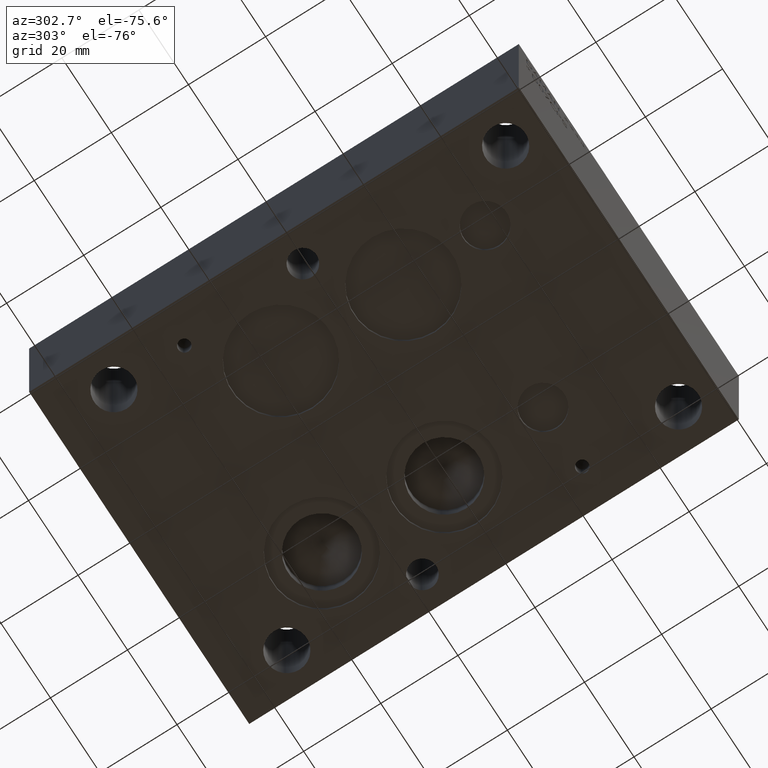
[diagram: clean part render]
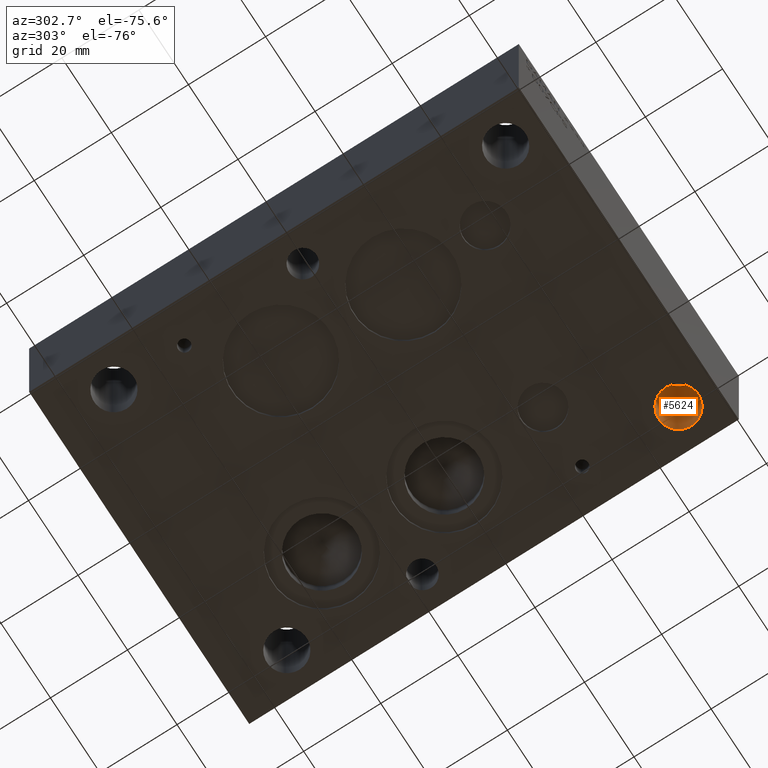
[diagram: same view with one face highlighted and labeled with its STEP entity id]
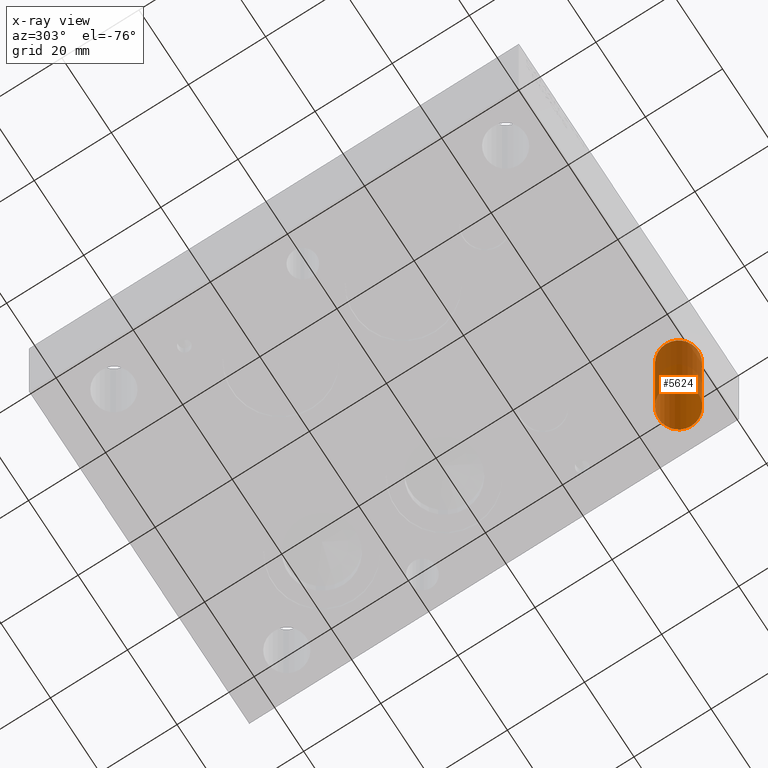
[diagram: x-ray of the same camera — body ghosted, the highlighted face saturated]
A machine part, auxiliary view. The second image highlights one B-rep face of the part: STEP entity #5624.
The next image is the same camera in x-ray: the body ghosted, the highlighted face saturated — about 31% of this face is hidden behind the body in this view.
In plain terms, the highlighted cylindrical surface (bore or boss wall) has radius 5.1562 mm, axis along (0, 0, -1).
Its self-contained STEP definition (entity closure, byte-faithful):
#28=CYLINDRICAL_SURFACE('',#5915,0.203);
#78=CIRCLE('',#5916,0.203);
#79=CIRCLE('',#5917,0.203);
#80=CIRCLE('',#5918,0.203);
#486=FACE_OUTER_BOUND('',#802,.T.);
#802=EDGE_LOOP('',(#5061,#5062,#5063,#5064,#5065));
#1430=LINE('',#9792,#2040);
#2040=VECTOR('',#7062,0.203);
#2718=VERTEX_POINT('',#9789);
#2719=VERTEX_POINT('',#9791);
#2720=VERTEX_POINT('',#9793);
#3513=EDGE_CURVE('',#2718,#2718,#78,.T.);
#3514=EDGE_CURVE('',#2718,#2719,#1430,.T.);
#3515=EDGE_CURVE('',#2720,#2719,#79,.T.);
#3516=EDGE_CURVE('',#2719,#2720,#80,.T.);
#5061=ORIENTED_EDGE('',*,*,#3513,.F.);
#5062=ORIENTED_EDGE('',*,*,#3514,.T.);
#5063=ORIENTED_EDGE('',*,*,#3515,.F.);
#5064=ORIENTED_EDGE('',*,*,#3516,.F.);
#5065=ORIENTED_EDGE('',*,*,#3514,.F.);
#5624=ADVANCED_FACE('',(#486),#28,.F.);
#5915=AXIS2_PLACEMENT_3D('',#9788,#7058,#7059);
#5916=AXIS2_PLACEMENT_3D('',#9790,#7060,#7061);
#5917=AXIS2_PLACEMENT_3D('',#9794,#7063,#7064);
#5918=AXIS2_PLACEMENT_3D('',#9795,#7065,#7066);
#7058=DIRECTION('center_axis',(0.,0.,-1.));
#7059=DIRECTION('ref_axis',(1.,0.,0.));
#7060=DIRECTION('center_axis',(0.,0.,-1.));
#7061=DIRECTION('ref_axis',(1.,0.,0.));
#7062=DIRECTION('',(0.,0.,-1.));
#7063=DIRECTION('center_axis',(0.,0.,1.));
#7064=DIRECTION('ref_axis',(1.,0.,0.));
#7065=DIRECTION('center_axis',(0.,0.,1.));
#7066=DIRECTION('ref_axis',(1.,0.,0.));
#9788=CARTESIAN_POINT('Origin',(3.125,0.375,0.8));
#9789=CARTESIAN_POINT('',(2.922,0.375,1.5));
#9790=CARTESIAN_POINT('Origin',(3.125,0.375,1.5));
#9791=CARTESIAN_POINT('',(2.922,0.375,0.));
#9792=CARTESIAN_POINT('',(2.922,0.375,0.8));
#9793=CARTESIAN_POINT('',(3.328,0.375,0.));
#9794=CARTESIAN_POINT('Origin',(3.125,0.375,0.));
#9795=CARTESIAN_POINT('Origin',(3.125,0.375,0.));